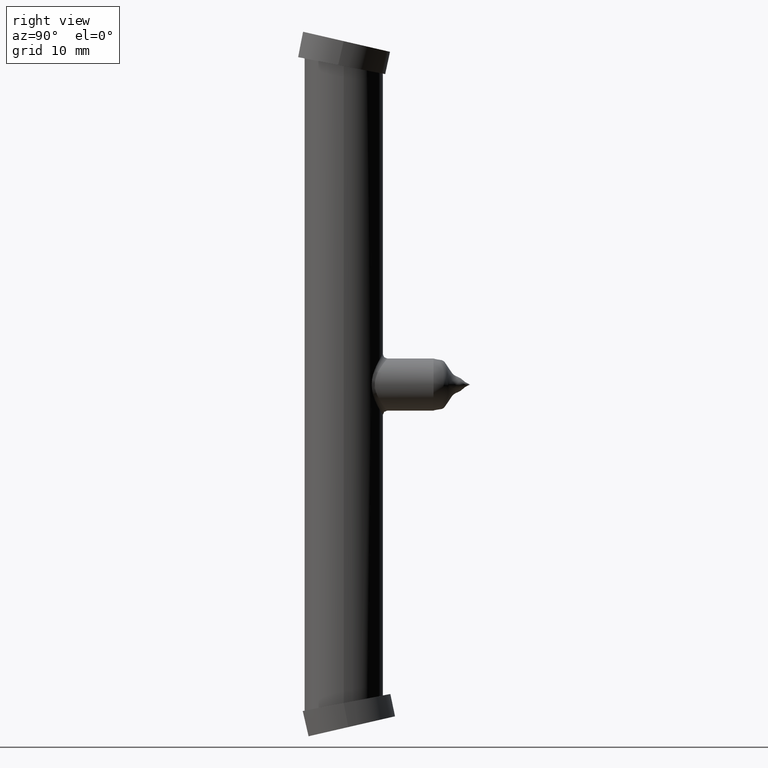
[diagram: clean part render]
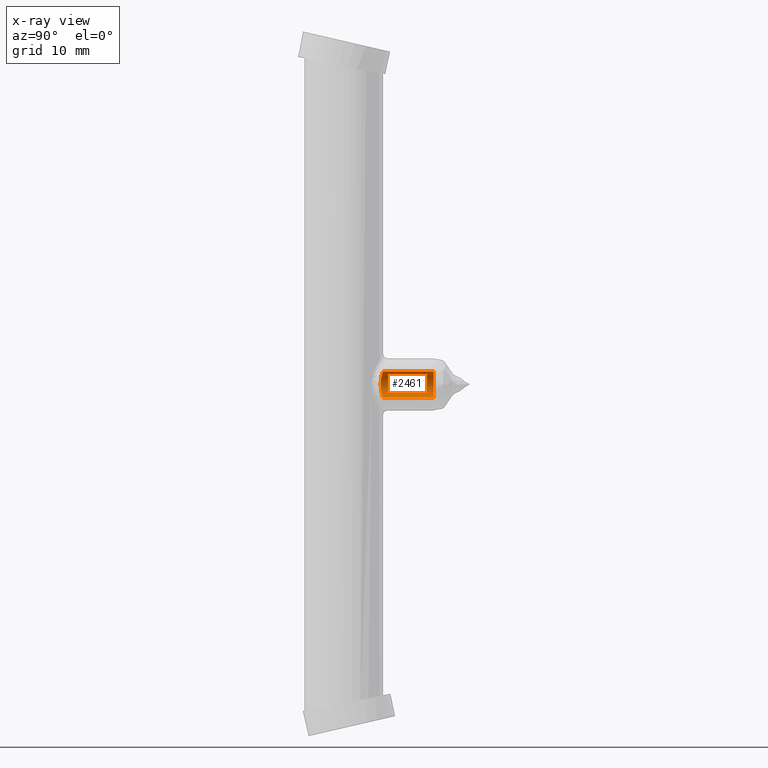
[diagram: x-ray — body ghosted, one internal face saturated and labeled with its STEP entity id]
A machine part, right view, then the same camera in x-ray: the body is ghosted and one INTERNAL B-rep face — a face not visible from any outside direction — is saturated and labeled: STEP entity #2461.
In plain terms, the highlighted cylindrical surface (edge-blend (fillet) strip) has radius 1.5 mm, axis along (-0, -1, -0).
Its self-contained STEP definition (entity closure, byte-faithful):
#313 = CARTESIAN_POINT ( 'NONE',  ( 1.836909530733565400E-016, 10.31214384659406800, 1.499999999999999600 ) ) ;
#318 = CARTESIAN_POINT ( 'NONE',  ( 0.0000000000000000000, 10.31214384659406800, -1.499999999999999600 ) ) ;
#1448 = CARTESIAN_POINT ( 'NONE',  ( 1.836260973915770800E-016, 4.500000000000000000, 1.499999999999999600 ) ) ;
#1452 = CARTESIAN_POINT ( 'NONE',  ( -0.1979568816429905200, 4.496680281850886200, -1.490122555456948800 ) ) ;
#1453 = CARTESIAN_POINT ( 'NONE',  ( -0.3906288402496459500, 4.484052808937646800, -1.451571998364731700 ) ) ;
#1454 = CARTESIAN_POINT ( 'NONE',  ( -0.4862988765820049400, 4.474580708382621500, -1.422379260786023500 ) ) ;
#1455 = CARTESIAN_POINT ( 'NONE',  ( -0.6676459985335855300, 4.451135578011182800, -1.346810372517677700 ) ) ;
#1456 = CARTESIAN_POINT ( 'NONE',  ( -0.7534152740631445700, 4.437247950896255200, -1.300722891224621400 ) ) ;
#1457 = CARTESIAN_POINT ( 'NONE',  ( -0.9155261477763321200, 4.406655855142592900, -1.192193980728476900 ) ) ;
#1458 = CARTESIAN_POINT ( 'NONE',  ( -0.9921188124220061700, 4.389840761270693100, -1.129225825952461500 ) ) ;
#1459 = CARTESIAN_POINT ( 'NONE',  ( -1.198305904112671600, 4.339823677209704300, -0.9229657501811218100 ) ) ;
#1460 = CARTESIAN_POINT ( 'NONE',  ( -1.309626699812709300, 4.305940152248599200, -0.7570613331830845500 ) ) ;
#1483 = DIRECTION ( 'NONE',  ( 0.0000000000000000000, 0.0000000000000000000, -1.000000000000000000 ) ) ;
#1484 = DIRECTION ( 'NONE',  ( -0.0000000000000000000, -1.000000000000000000, -0.0000000000000000000 ) ) ;
#1485 = CARTESIAN_POINT ( 'NONE',  ( 0.0000000000000000000, 0.0000000000000000000, 0.0000000000000000000 ) ) ;
#1486 = AXIS2_PLACEMENT_3D ( 'NONE', #1485, #1484, #1483 ) ;
#1490 = CYLINDRICAL_SURFACE ( 'NONE', #1486, 1.499999999999999600 ) ;
#1527 = DIRECTION ( 'NONE',  ( 0.0000000000000000000, 0.0000000000000000000, -1.000000000000000000 ) ) ;
#1528 = DIRECTION ( 'NONE',  ( -0.0000000000000000000, -1.000000000000000000, -0.0000000000000000000 ) ) ;
#1529 = CARTESIAN_POINT ( 'NONE',  ( 0.0000000000000000000, 10.31214384659406800, 0.0000000000000000000 ) ) ;
#1530 = AXIS2_PLACEMENT_3D ( 'NONE', #1529, #1528, #1527 ) ;
#1531 = CIRCLE ( 'NONE', #1530, 1.499999999999999600 ) ;
#1565 = CARTESIAN_POINT ( 'NONE',  ( -1.422391424307426900, 4.269468738374710500, -0.4861775651163965900 ) ) ;
#1566 = CARTESIAN_POINT ( 'NONE',  ( -1.451584965278949400, 4.259497701053383000, -0.3907281462600500400 ) ) ;
#1567 = CARTESIAN_POINT ( 'NONE',  ( -1.490301665811140300, 4.246106513216958900, -0.1968967764699143800 ) ) ;
#1568 = CARTESIAN_POINT ( 'NONE',  ( -1.499988215169354200, 4.242644853686083000, -0.09902123604684820400 ) ) ;
#1569 = CARTESIAN_POINT ( 'NONE',  ( -1.500011763546054800, 4.242636528077724700, 0.09866387413154675800 ) ) ;
#1570 = CARTESIAN_POINT ( 'NONE',  ( -1.490014011914522900, 4.246207197890973900, 0.1987361448649500300 ) ) ;
#1571 = CARTESIAN_POINT ( 'NONE',  ( -1.451400685683948300, 4.259560232314938400, 0.3912465470436252700 ) ) ;
#1572 = CARTESIAN_POINT ( 'NONE',  ( -1.422876469198731000, 4.269310226602399900, 0.4849379226664352600 ) ) ;
#1573 = CARTESIAN_POINT ( 'NONE',  ( -1.309156772915551300, 4.306095397713891200, 0.7583386352329919400 ) ) ;
#1574 = LINE ( 'NONE', #1653, #1652 ) ;
#1575 = B_SPLINE_CURVE_WITH_KNOTS ( 'NONE', 3,
 ( #1448, #1644, #1643, #1642, #1641, #1640, #1639, #1638, #1573, #1572, #1571, #1570, #1569, #1568, #1567, #1566, #1565, #1460, #1459, #1458, #1457, #1456, #1455, #1454, #1453, #1452, #1656, #1655 ),
 .UNSPECIFIED., .F., .F.,
 ( 4, 2, 2, 2, 2, 2, 2, 2, 2, 2, 2, 2, 2, 4 ),
 ( 0.004723735807370610200, 0.005314052446406369900, 0.005609210765924250100, 0.005904369085442130400, 0.006494685724477890000, 0.006789844043995770300, 0.007085002363513649700, 0.007380160683031530000, 0.007675319002549410200, 0.008265635641585170800, 0.008560793961103050100, 0.008855952280620929500, 0.009151110600138810700, 0.009446268919656690100 ),
 .UNSPECIFIED. ) ;
#1576 = CARTESIAN_POINT ( 'NONE',  ( -1.086542733272298400E-016, 4.500000000000000000, -1.499999999999999600 ) ) ;
#1580 = CARTESIAN_POINT ( 'NONE',  ( 1.836260973915770800E-016, 4.500000000000000000, 1.499999999999999600 ) ) ;
#1581 = DIRECTION ( 'NONE',  ( -0.0000000000000000000, -1.000000000000000000, -0.0000000000000000000 ) ) ;
#1582 = VECTOR ( 'NONE', #1581, 1000.000000000000000 ) ;
#1583 = CARTESIAN_POINT ( 'NONE',  ( 1.836909530733565400E-016, 0.0000000000000000000, 1.499999999999999600 ) ) ;
#1584 = LINE ( 'NONE', #1583, #1582 ) ;
#1620 = FACE_OUTER_BOUND ( 'NONE', #2259, .T. ) ;
#1638 = CARTESIAN_POINT ( 'NONE',  ( -1.199344597421051500, 4.339571582199915200, 0.9219256943055351700 ) ) ;
#1639 = CARTESIAN_POINT ( 'NONE',  ( -0.9916051772751682800, 4.389965423269427600, 1.129740140340719500 ) ) ;
#1640 = CARTESIAN_POINT ( 'NONE',  ( -0.9165092805015391300, 4.406450034839005900, 1.191435050383733200 ) ) ;
#1641 = CARTESIAN_POINT ( 'NONE',  ( -0.7545581038697679600, 4.437052314167885900, 1.300057232745081400 ) ) ;
#1642 = CARTESIAN_POINT ( 'NONE',  ( -0.6668234931441763300, 4.451255231312102500, 1.347202654153530900 ) ) ;
#1643 = CARTESIAN_POINT ( 'NONE',  ( -0.3953255326570352900, 4.486315252453714200, 1.460189019510312900 ) ) ;
#1644 = CARTESIAN_POINT ( 'NONE',  ( -0.1967303618451785000, 4.500000000000000900, 1.499999999999999800 ) ) ;
#1651 = DIRECTION ( 'NONE',  ( -0.0000000000000000000, -1.000000000000000000, -0.0000000000000000000 ) ) ;
#1652 = VECTOR ( 'NONE', #1651, 1000.000000000000000 ) ;
#1653 = CARTESIAN_POINT ( 'NONE',  ( 0.0000000000000000000, 0.0000000000000000000, -1.499999999999999600 ) ) ;
#1655 = CARTESIAN_POINT ( 'NONE',  ( -1.086542733272298400E-016, 4.500000000000000000, -1.499999999999999600 ) ) ;
#1656 = CARTESIAN_POINT ( 'NONE',  ( -0.09985389111291810600, 4.500000000000000000, -1.500000000000000000 ) ) ;
#2259 = EDGE_LOOP ( 'NONE', ( #2260, #2261, #2442, #2445 ) ) ;
#2260 = ORIENTED_EDGE ( 'NONE', *, *, #2460, .F. ) ;
#2261 = ORIENTED_EDGE ( 'NONE', *, *, #2440, .T. ) ;
#2293 = VERTEX_POINT ( 'NONE', #318 ) ;
#2296 = VERTEX_POINT ( 'NONE', #313 ) ;
#2440 = EDGE_CURVE ( 'NONE', #2296, #2441, #1584, .T. ) ;
#2441 = VERTEX_POINT ( 'NONE', #1580 ) ;
#2442 = ORIENTED_EDGE ( 'NONE', *, *, #2443, .T. ) ;
#2443 = EDGE_CURVE ( 'NONE', #2441, #2444, #1575, .T. ) ;
#2444 = VERTEX_POINT ( 'NONE', #1576 ) ;
#2445 = ORIENTED_EDGE ( 'NONE', *, *, #2446, .F. ) ;
#2446 = EDGE_CURVE ( 'NONE', #2293, #2444, #1574, .T. ) ;
#2460 = EDGE_CURVE ( 'NONE', #2296, #2293, #1531, .T. ) ;
#2461 = ADVANCED_FACE ( 'NONE', ( #1620 ), #1490, .F. ) ;